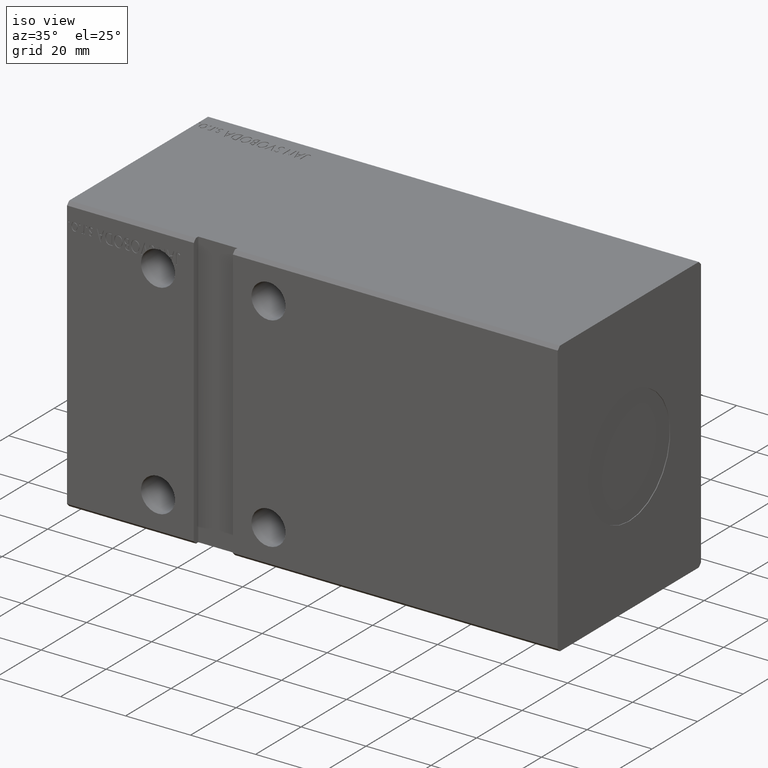
[diagram: clean part render]
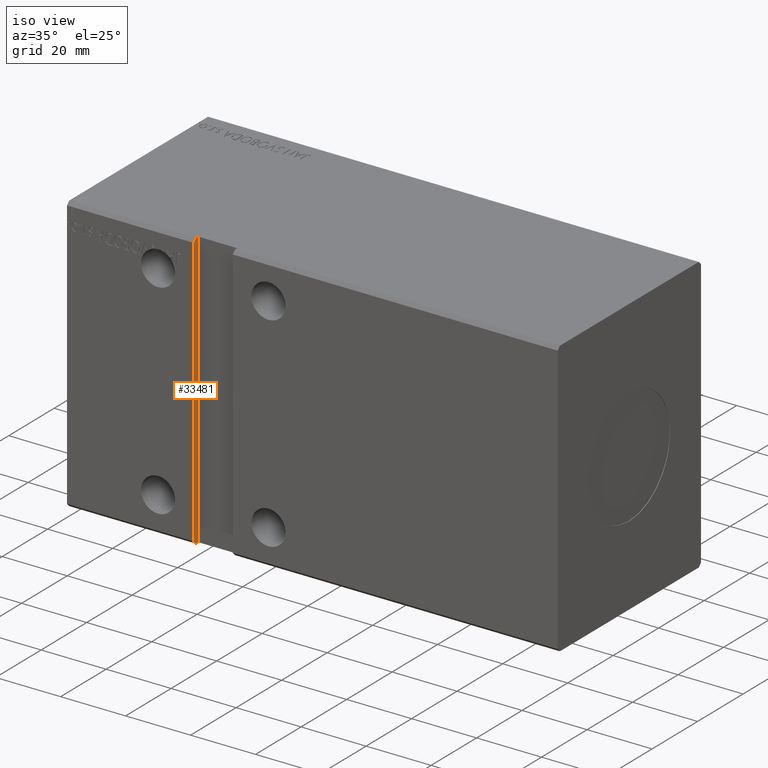
[diagram: same view with one face highlighted and labeled with its STEP entity id]
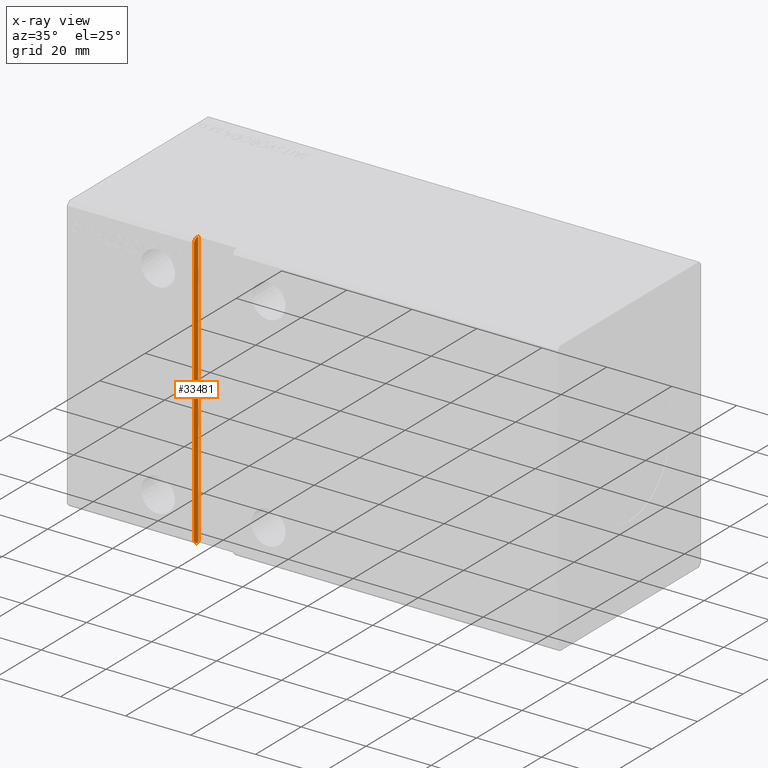
[diagram: x-ray of the same camera — body ghosted, the highlighted face saturated]
A machine part, iso view. The second image highlights one B-rep face of the part: STEP entity #33481.
The next image is the same camera in x-ray: the body ghosted, the highlighted face saturated — about 0% of this face is hidden behind the body in this view.
In plain terms, the highlighted planar face has unit normal (-1, 0, -0).
Its self-contained STEP definition (entity closure, byte-faithful):
#183 = CARTESIAN_POINT ( 'NONE',  ( 39.00000000000000000, -29.50000000000000000, 42.49999999999999289 ) ) ;
#1116 = CARTESIAN_POINT ( 'NONE',  ( 39.00000000000000000, -31.50000000000000000, 41.49999999999999289 ) ) ;
#1181 = DIRECTION ( 'NONE',  ( -1.731719623548284700E-16, 0.7071067811865462405, 0.7071067811865489050 ) ) ;
#1753 = LINE ( 'NONE', #33642, #6512 ) ;
#2407 = EDGE_LOOP ( 'NONE', ( #22907, #15357, #29378, #17555, #24849, #29059 ) ) ;
#2414 = DIRECTION ( 'NONE',  ( 2.449021377849609697E-16, 0.000000000000000000, -1.000000000000000000 ) ) ;
#2883 = DIRECTION ( 'NONE',  ( -1.000000000000000000, 1.348690437245963344E-32, -2.449021377849610190E-16 ) ) ;
#4290 = CARTESIAN_POINT ( 'NONE',  ( 39.00000000000000711, -30.50000000000001776, 42.49999999999998579 ) ) ;
#4948 = CARTESIAN_POINT ( 'NONE',  ( 39.00000000000002132, -31.49999999999998579, -41.50000000000002132 ) ) ;
#5478 = VECTOR ( 'NONE', #17569, 1000.000000000000114 ) ;
#5957 = VERTEX_POINT ( 'NONE', #1116 ) ;
#6202 = LINE ( 'NONE', #18634, #21423 ) ;
#6512 = VECTOR ( 'NONE', #36332, 1000.000000000000000 ) ;
#7168 = EDGE_CURVE ( 'NONE', #5957, #13315, #32041, .T. ) ;
#7307 = EDGE_CURVE ( 'NONE', #28001, #37754, #30774, .T. ) ;
#8229 = CARTESIAN_POINT ( 'NONE',  ( 39.00000000000000000, -30.50000000000000355, 42.49999999999999289 ) ) ;
#8972 = EDGE_CURVE ( 'NONE', #5957, #25657, #11572, .T. ) ;
#9666 = VECTOR ( 'NONE', #2414, 1000.000000000000000 ) ;
#10182 = CARTESIAN_POINT ( 'NONE',  ( 39.00000000000000711, -31.50000000000000000, -41.50000000000000711 ) ) ;
#10544 = LINE ( 'NONE', #4948, #5478 ) ;
#11397 = CARTESIAN_POINT ( 'NONE',  ( 39.00000000000002132, -29.50000000000000000, -42.50000000000000711 ) ) ;
#11572 = LINE ( 'NONE', #34334, #22952 ) ;
#13315 = VERTEX_POINT ( 'NONE', #8229 ) ;
#15035 = EDGE_CURVE ( 'NONE', #37754, #35726, #1753, .T. ) ;
#15357 = ORIENTED_EDGE ( 'NONE', *, *, #28366, .F. ) ;
#15716 = DIRECTION ( 'NONE',  ( -0.000000000000000000, -1.000000000000000000, -5.507058653894625237E-17 ) ) ;
#15919 = FACE_OUTER_BOUND ( 'NONE', #2407, .T. ) ;
#16804 = CARTESIAN_POINT ( 'NONE',  ( 39.00000000000000000, -29.50000000000000000, 42.49999999999999289 ) ) ;
#17555 = ORIENTED_EDGE ( 'NONE', *, *, #7307, .F. ) ;
#17569 = DIRECTION ( 'NONE',  ( -1.731719623548287412E-16, -0.7071067811865451302, 0.7071067811865500152 ) ) ;
#18634 = CARTESIAN_POINT ( 'NONE',  ( 39.00000000000000000, -29.50000000000000000, 42.49999999999999289 ) ) ;
#20547 = CARTESIAN_POINT ( 'NONE',  ( 39.00000000000002132, -30.50000000000000711, -42.50000000000000711 ) ) ;
#21423 = VECTOR ( 'NONE', #15716, 1000.000000000000000 ) ;
#21819 = AXIS2_PLACEMENT_3D ( 'NONE', #183, #2883, #34963 ) ;
#22907 = ORIENTED_EDGE ( 'NONE', *, *, #8972, .T. ) ;
#22952 = VECTOR ( 'NONE', #34138, 1000.000000000000000 ) ;
#24849 = ORIENTED_EDGE ( 'NONE', *, *, #31501, .T. ) ;
#25657 = VERTEX_POINT ( 'NONE', #10182 ) ;
#28001 = VERTEX_POINT ( 'NONE', #16804 ) ;
#28366 = EDGE_CURVE ( 'NONE', #35726, #25657, #10544, .T. ) ;
#28758 = PLANE ( 'NONE',  #21819 ) ;
#28836 = VECTOR ( 'NONE', #1181, 999.9999999999998863 ) ;
#29059 = ORIENTED_EDGE ( 'NONE', *, *, #7168, .F. ) ;
#29378 = ORIENTED_EDGE ( 'NONE', *, *, #15035, .F. ) ;
#30774 = LINE ( 'NONE', #40293, #9666 ) ;
#31501 = EDGE_CURVE ( 'NONE', #28001, #13315, #6202, .T. ) ;
#32041 = LINE ( 'NONE', #4290, #28836 ) ;
#33481 = ADVANCED_FACE ( 'NONE', ( #15919 ), #28758, .F. ) ;
#33642 = CARTESIAN_POINT ( 'NONE',  ( 39.00000000000002132, -29.50000000000000000, -42.50000000000000711 ) ) ;
#34138 = DIRECTION ( 'NONE',  ( 2.449021377849609697E-16, 0.000000000000000000, -1.000000000000000000 ) ) ;
#34334 = CARTESIAN_POINT ( 'NONE',  ( 39.00000000000000000, -31.50000000000000000, 42.49999999999999289 ) ) ;
#34963 = DIRECTION ( 'NONE',  ( -2.449021377849610190E-16, 0.000000000000000000, 1.000000000000000000 ) ) ;
#35726 = VERTEX_POINT ( 'NONE', #20547 ) ;
#36332 = DIRECTION ( 'NONE',  ( -0.000000000000000000, -1.000000000000000000, -5.507058653894625237E-17 ) ) ;
#37754 = VERTEX_POINT ( 'NONE', #11397 ) ;
#40293 = CARTESIAN_POINT ( 'NONE',  ( 39.00000000000000000, -29.50000000000000000, 42.49999999999999289 ) ) ;